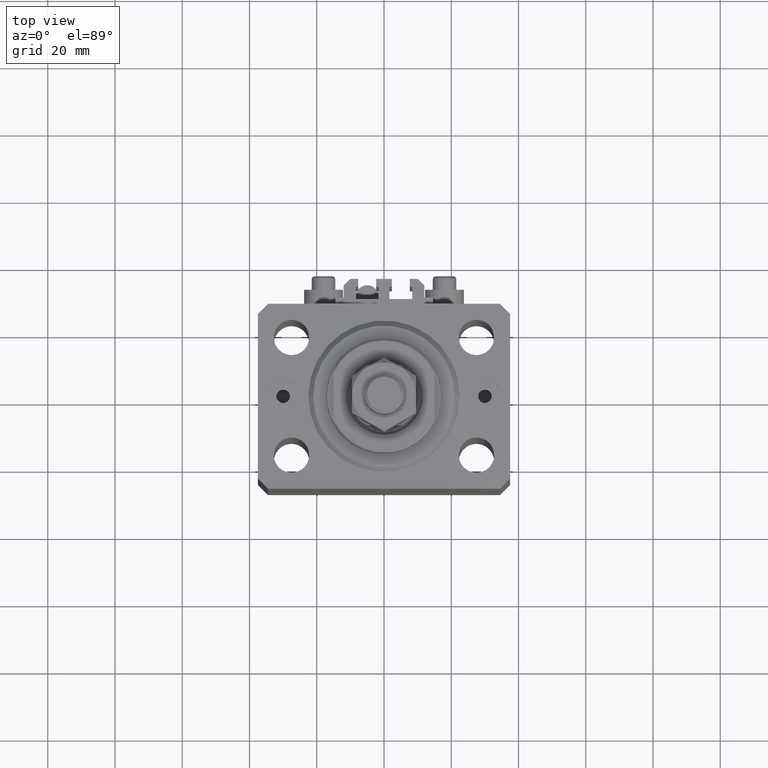
[diagram: clean part render]
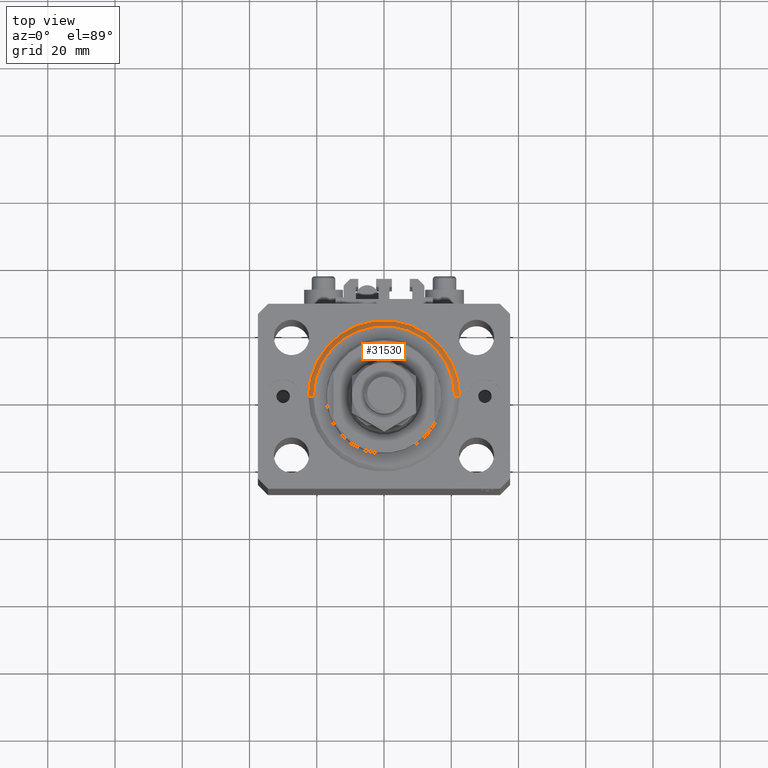
[diagram: same view with one face highlighted and labeled with its STEP entity id]
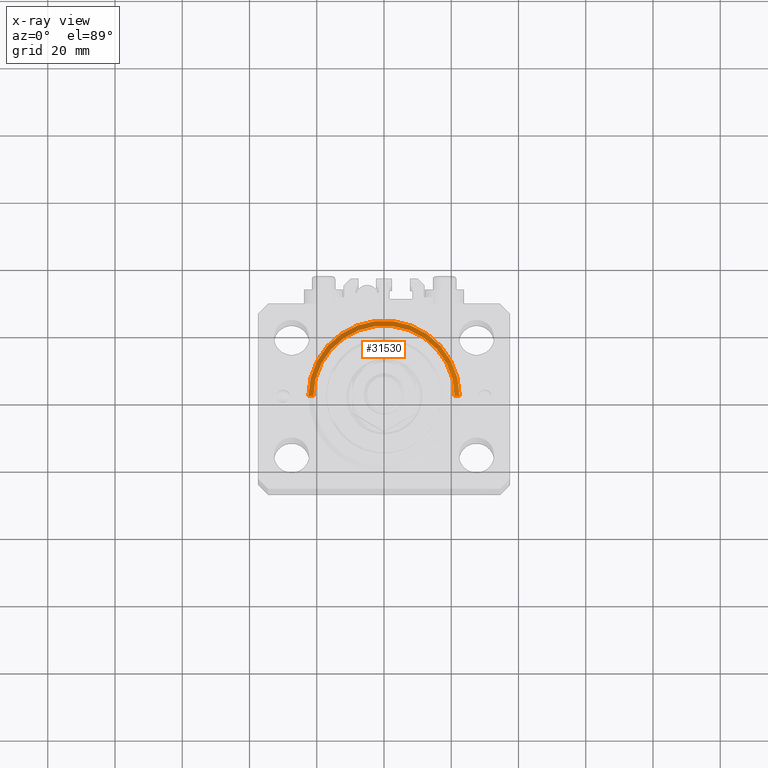
[diagram: x-ray of the same camera — body ghosted, the highlighted face saturated]
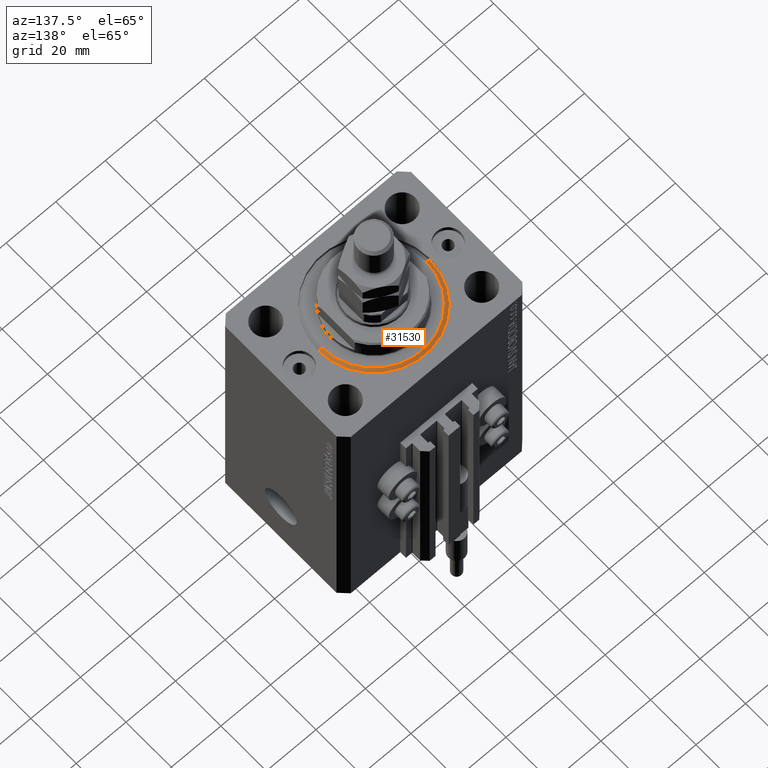
[diagram: same view with one face highlighted and labeled with its STEP entity id]
A machine part, top view. The second image highlights one B-rep face of the part: STEP entity #31530.
The next image is the same camera in x-ray: the body ghosted, the highlighted face saturated — about 0% of this face is hidden behind the body in this view.
A second angle (auxiliary view) of the same face is appended — the face is thin or edge-on in the first view.
In plain terms, the highlighted conical surface has half-angle 45 deg.
Its self-contained STEP definition (entity closure, byte-faithful):
#1773 = EDGE_CURVE ( 'NONE', #14953, #46284, #40916, .T. ) ;
#2157 = CARTESIAN_POINT ( 'NONE',  ( 0.000000000000000000, 0.000000000000000000, 1.500000000000039524 ) ) ;
#2912 = ORIENTED_EDGE ( 'NONE', *, *, #27230, .T. ) ;
#3633 = LINE ( 'NONE', #30204, #33217 ) ;
#4028 = EDGE_CURVE ( 'NONE', #34620, #14953, #13091, .T. ) ;
#6457 = CARTESIAN_POINT ( 'NONE',  ( 20.99999999999995381, 0.000000000000000000, 0.000000000000000000 ) ) ;
#8305 = ORIENTED_EDGE ( 'NONE', *, *, #10388, .F. ) ;
#10388 = EDGE_CURVE ( 'NONE', #46284, #37034, #18905, .T. ) ;
#13091 = CIRCLE ( 'NONE', #29910, 20.99999999999995381 ) ;
#14953 = VERTEX_POINT ( 'NONE', #6457 ) ;
#15188 = DIRECTION ( 'NONE',  ( 1.000000000000000000, 0.000000000000000000, 0.000000000000000000 ) ) ;
#16987 = AXIS2_PLACEMENT_3D ( 'NONE', #2157, #28503, #24501 ) ;
#18351 = CARTESIAN_POINT ( 'NONE',  ( 22.50000000000000355, 0.000000000000000000, 1.500000000000039524 ) ) ;
#18571 = CONICAL_SURFACE ( 'NONE', #16987, 22.50000000000000355, 0.7853981633974517207 ) ;
#18603 = DIRECTION ( 'NONE',  ( 0.7071067811865500152, 0.000000000000000000, 0.7071067811865451302 ) ) ;
#18905 = CIRCLE ( 'NONE', #25298, 22.50000000000000355 ) ;
#22685 = DIRECTION ( 'NONE',  ( -0.7071067811865500152, 8.659560562354962440E-17, 0.7071067811865451302 ) ) ;
#24244 = ORIENTED_EDGE ( 'NONE', *, *, #4028, .F. ) ;
#24299 = CARTESIAN_POINT ( 'NONE',  ( 22.50000000000000355, 2.755455298081544383E-15, 1.500000000000039524 ) ) ;
#24501 = DIRECTION ( 'NONE',  ( 1.000000000000000000, 0.000000000000000000, 0.000000000000000000 ) ) ;
#24852 = CARTESIAN_POINT ( 'NONE',  ( -22.50000000000000355, 0.000000000000000000, 1.500000000000039524 ) ) ;
#25221 = ORIENTED_EDGE ( 'NONE', *, *, #1773, .F. ) ;
#25298 = AXIS2_PLACEMENT_3D ( 'NONE', #41198, #33918, #41941 ) ;
#27230 = EDGE_CURVE ( 'NONE', #34620, #37034, #3633, .T. ) ;
#27346 = CARTESIAN_POINT ( 'NONE',  ( -20.99999999999995381, 2.663606788145490261E-15, 0.000000000000000000 ) ) ;
#28257 = FACE_OUTER_BOUND ( 'NONE', #39665, .T. ) ;
#28503 = DIRECTION ( 'NONE',  ( -0.000000000000000000, -0.000000000000000000, 1.000000000000000000 ) ) ;
#29726 = DIRECTION ( 'NONE',  ( -0.000000000000000000, -0.000000000000000000, -1.000000000000000000 ) ) ;
#29910 = AXIS2_PLACEMENT_3D ( 'NONE', #33740, #29726, #15188 ) ;
#30204 = CARTESIAN_POINT ( 'NONE',  ( -22.50000000000000355, 2.755455298081545172E-15, 1.500000000000039524 ) ) ;
#31530 = ADVANCED_FACE ( 'NONE', ( #28257 ), #18571, .T. ) ;
#33217 = VECTOR ( 'NONE', #22685, 1000.000000000000114 ) ;
#33740 = CARTESIAN_POINT ( 'NONE',  ( 0.000000000000000000, 0.000000000000000000, 0.000000000000000000 ) ) ;
#33918 = DIRECTION ( 'NONE',  ( -0.000000000000000000, -0.000000000000000000, 1.000000000000000000 ) ) ;
#34620 = VERTEX_POINT ( 'NONE', #27346 ) ;
#37034 = VERTEX_POINT ( 'NONE', #24852 ) ;
#38655 = VECTOR ( 'NONE', #18603, 1000.000000000000114 ) ;
#39665 = EDGE_LOOP ( 'NONE', ( #24244, #2912, #8305, #25221 ) ) ;
#40916 = LINE ( 'NONE', #18351, #38655 ) ;
#41198 = CARTESIAN_POINT ( 'NONE',  ( 0.000000000000000000, 0.000000000000000000, 1.500000000000039524 ) ) ;
#41941 = DIRECTION ( 'NONE',  ( 1.000000000000000000, 0.000000000000000000, 0.000000000000000000 ) ) ;
#46284 = VERTEX_POINT ( 'NONE', #24299 ) ;